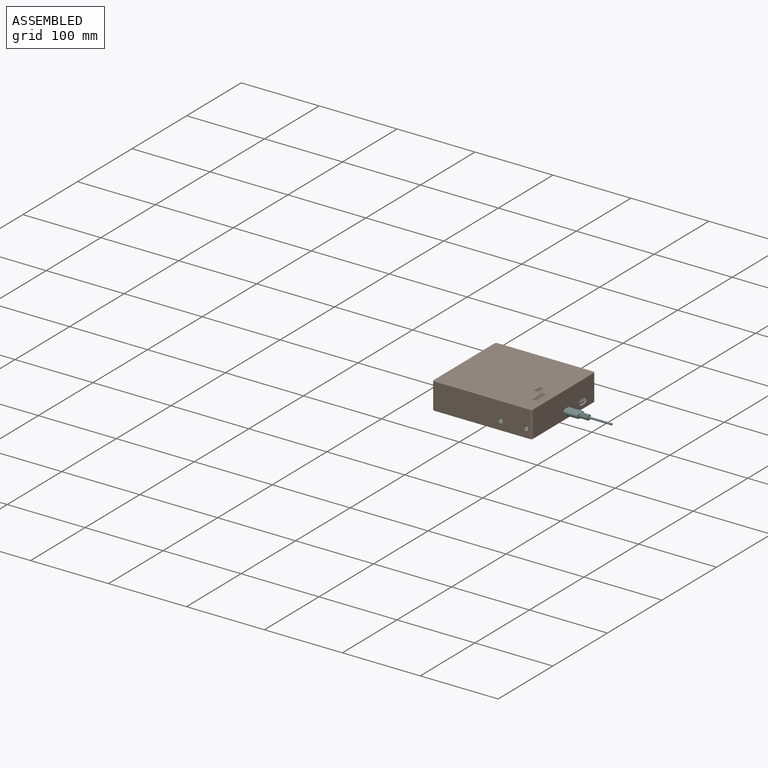
[diagram: assembled view]
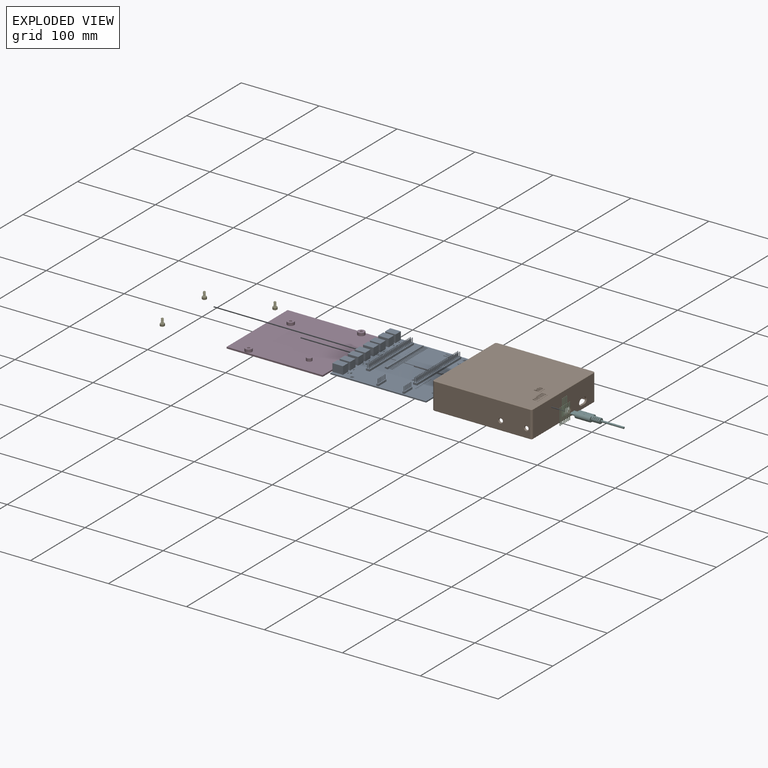
[diagram: exploded view]
GUIDED TOUR — FREECAD ASSEMBLY "ADATFaceCase"

This assembly has 6 components, labeled P0..P5 below (a component is one placed body or linked part; the same part can appear more than once), held together by 0 modeled joints plus 9 derived contact edges. A joint is a constraint between two components; its type names the relative motion it leaves free:
  CONTACT — a derived adjacency edge — the two components touch in the source model (clearance under 2% of the assembly's diagonal); it is measured from the geometry, not a modeled constraint.
Axis/direction vectors are unit vectors and 'through' points are millimeter coordinates, both in the assembly's world frame.

MATES
  1. CONTACT "contact_0_1": P0 <-> P1, contact direction (1.000, 0.000, 0.000) through (-38.56, -53.04, -4.40) mm (derived from contact, not a modeled constraint)
  2. CONTACT "contact_0_3": P0 <-> P3, contact direction (0.000, 0.000, -1.000) through (-37.58, 27.60, -5.99) mm (derived from contact, not a modeled constraint)
  3. CONTACT "contact_0_4": P0 <-> P4, contact direction (-1.000, 0.000, 0.000) through (35.49, 49.47, -4.39) mm (derived from contact, not a modeled constraint)
  4. CONTACT "contact_0_5": P0 <-> P5, contact direction (0.000, 0.000, 1.000) through (55.04, 9.71, -4.04) mm (derived from contact, not a modeled constraint)
  5. CONTACT "contact_1_2": P1 <-> P2, contact direction (1.000, 0.000, 0.000) through (55.66, -29.80, 23.04) mm (derived from contact, not a modeled constraint)
  6. CONTACT "contact_1_3": P1 <-> P3, contact direction (-1.000, 0.000, 0.000) through (62.08, 56.38, -11.65) mm (derived from contact, not a modeled constraint)
  7. CONTACT "contact_1_4": P1 <-> P4, contact direction (-1.000, 0.000, 0.000) through (-40.73, 28.87, -4.42) mm (derived from contact, not a modeled constraint)
  8. CONTACT "contact_1_5": P1 <-> P5, contact direction (1.000, 0.000, 0.000) through (61.71, 9.77, -6.25) mm (derived from contact, not a modeled constraint)
  9. CONTACT "contact_3_4": P3 <-> P4, contact direction (-0.030, 0.576, 0.817) through (35.34, 49.75, -6.90) mm (derived from contact, not a modeled constraint)

ASSEMBLY ORDER
  1. P0 — the base component [order verified]
  2. P3 [order verified]
  3. P4 [order verified]
  4. P1 [order verified]
  5. P2 [order verified]
  6. P5 [order verified]
(P3, P4, P5 verified with a relaxed clearance tolerance: the source model stores slight part interference there.)
Order-tag legend:
  [order verified] — this step's position reverses a verified removal order: the component was checked to insert without passing through the ones already placed.

Of the 6 components, 3 carry a construction recipe — the FreeCAD feature program (sketches with constraints, then the solid features that consume them) that regenerates the part from scratch, quoted from this document or from the linked companion document it references; the rest are supplied as boundary geometry only. The tour below walks the components in assembly order: each is shown spotlighted twice — in the assembled view, then in the exploded view, where a leader line traces a displaced component back to its assembled socket (components that stay in place when exploded have no leader line; saturated green if recipe-attached, orange if geometry-only; every other component desaturated gray) — followed by its recipe or geometry summary and the mates that hold it.
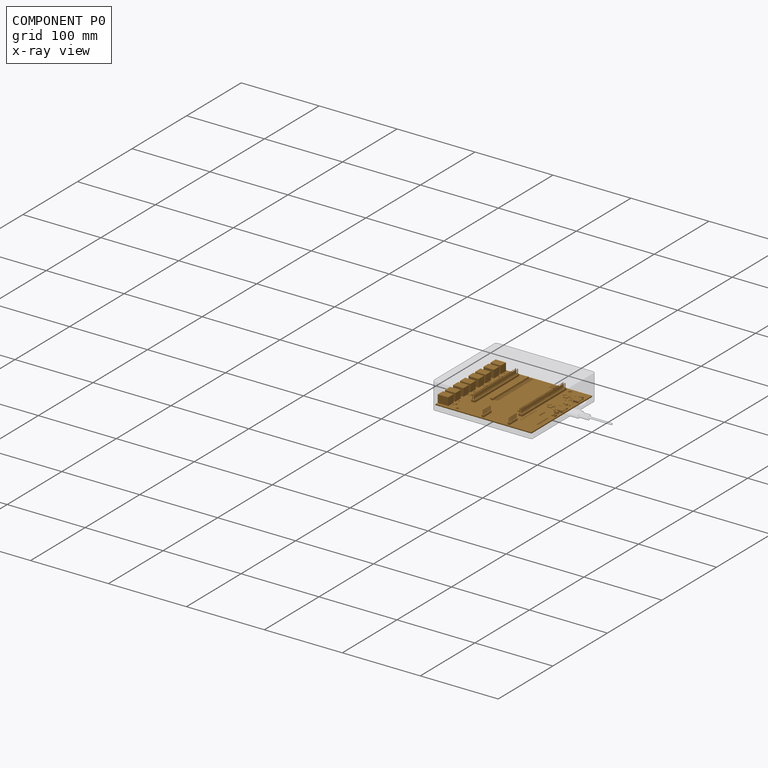
[diagram: component P0 — x-ray view]
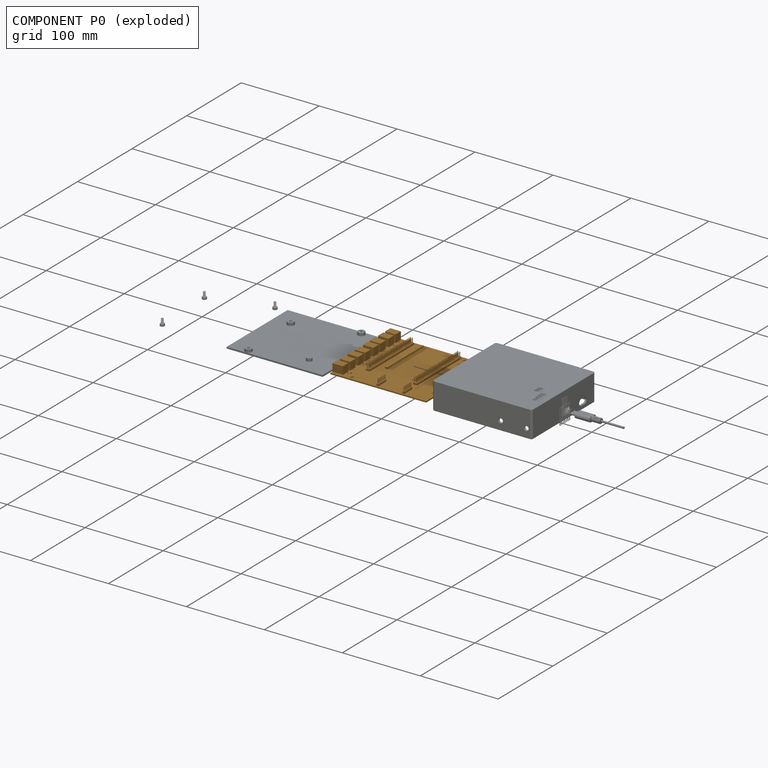
[diagram: component P0 — exploded]
COMPONENT P0 — geometry summary ("adatface_baseboard"; no construction recipe available for this part):
  bounding box: 123.0 x 111.6 x 13.8 mm
  tessellated surface: 78,732 triangles
  volume: 35729 mm^3 (19% of its bounding box)
Held by: resting contact with P1 (derived edge); resting contact with P3 (derived edge); resting contact with P4 (derived edge); resting contact with P5 (derived edge).
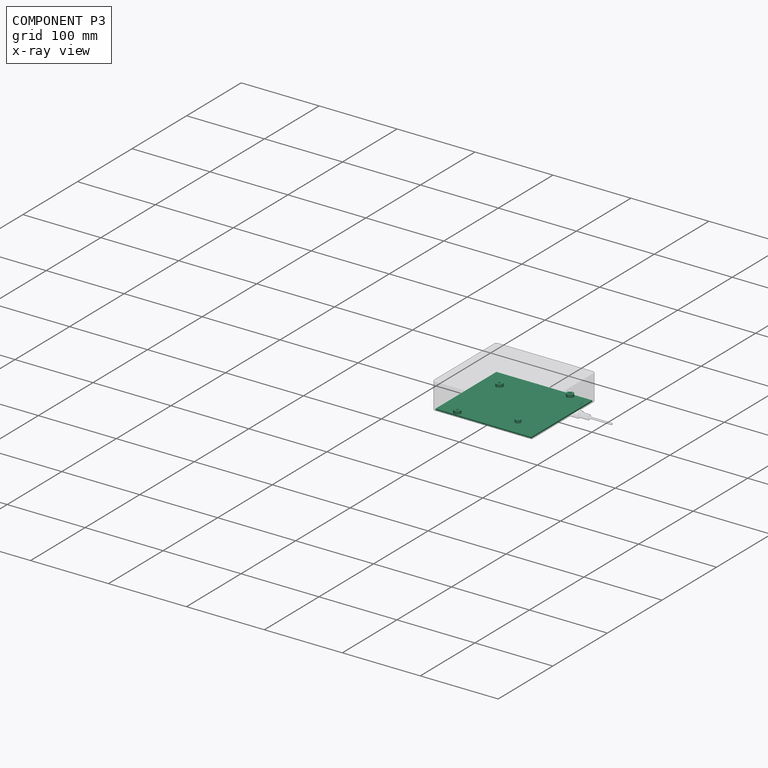
[diagram: component P3 — x-ray view]
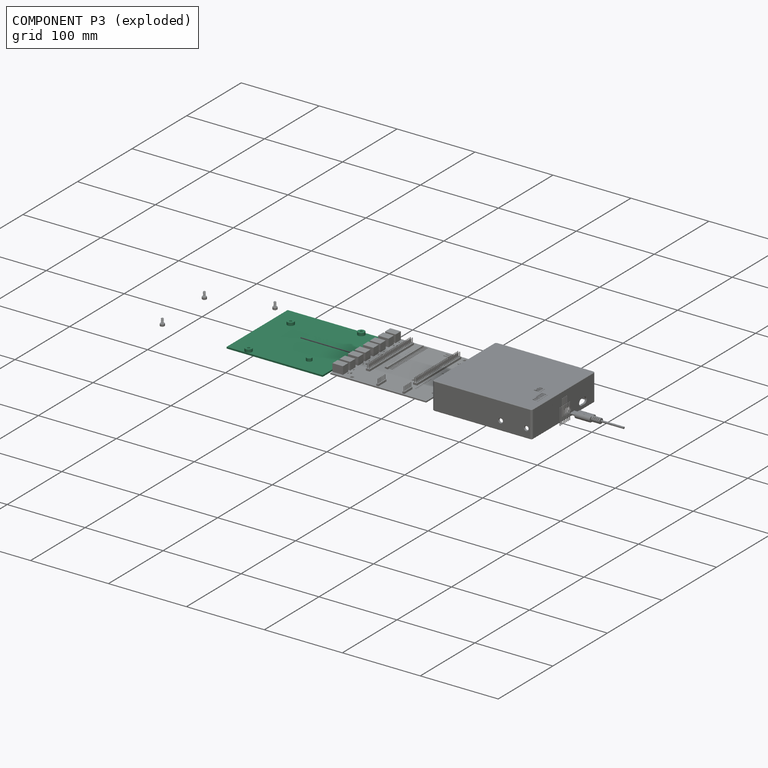
[diagram: component P3 — exploded]
COMPONENT P3 — recipe-attached ("CaseBottom", modeled in this document).
Held by: resting contact with P0 (derived edge); resting contact with P1 (derived edge); resting contact with P4 (derived edge).
Construction recipe (the document's own serialized feature program — sketch geometry with constraints, then the solid features built on it; lengths are millimeters unless a unit is written):

FEATURE [Sketcher::SketchObject] Sketch015  label="CaseBottomSketch"
  AttachmentOffset = pos=(0,0,-7.2) rot=(0,0,1;0rad)
  FullyConstrained = true
  MapMode = 5
  Placement = pos=(0,0,-7.2) rot=(0,0,1;0rad)
  Support = -> [XY_Plane020]
  expr: .AttachmentOffset.Base.z = <<Parameters>>.case_bottom_base
  expr: Constraints[9] = <<Parameters>>.board_length + <<Parameters>>.wall_clearance / 2
  expr: Constraints[8] = <<Parameters>>.board_width + <<Parameters>>.wall_clearance / 2
  sketch-geometry (4):
    g0: LineSegment StartX=-61.55 StartY=55.85 StartZ=0 EndX=61.55 EndY=55.85 EndZ=0
    g1: LineSegment StartX=61.55 StartY=55.85 StartZ=0 EndX=61.55 EndY=-55.85 EndZ=0
    g2: LineSegment StartX=61.55 StartY=-55.85 StartZ=0 EndX=-61.55 EndY=-55.85 EndZ=0
    g3: LineSegment StartX=-61.55 StartY=-55.85 StartZ=0 EndX=-61.55 EndY=55.85 EndZ=0
  constraints (11):
    c: Coincident(g0,g1)
    c: Coincident(g1,g2)
    c: Coincident(g2,g3)
    c: Coincident(g3,g0)
    c: Horizontal(g0)
    c: Horizontal(g2)
    c: Vertical(g1)
    c: Vertical(g3)
    c: DistanceX(g0,g0) = 123.1
    c: DistanceY(g1,g1) = 111.7
    c: Symmetric(g2,g0,g-1)
FEATURE [PartDesign::Pad] Pad003  label="CaseBottomPad"
  Direction = (1,1,1)
  Length = 2
  Length2 = 100
  Profile = -> Sketch015
  Type = 0
  expr: Length = <<Parameters>>.wall_thickness
FEATURE [Sketcher::SketchObject] Sketch016  label="BottomMountPadSketch"
  AttachmentOffset = pos=(0,0,-7.2) rot=(0,0,1;0rad)
  FullyConstrained = true
  MapMode = 5
  Placement = pos=(0,0,-7.2) rot=(0,0,1;0rad)
  Support = -> [XY_Plane021]
  expr: Constraints[4] = <<Parameters>>.mounting_screw_hole_diameter + <<Parameters>>.wall_thickness * 1.4
  expr: Constraints[0] = <<Parameters>>.mounting_hole_diameter
  expr: .AttachmentOffset.Base.z = <<Parameters>>.case_bottom_base
  sketch-geometry (2):
    g0: Circle CenterX=-36.7087 CenterY=-51.1516 CenterZ=0 NormalX=0 NormalY=0 NormalZ=1 AngleXU=0 Radius=1.5
    g1: Circle CenterX=-36.7087 CenterY=-51.1516 CenterZ=0 NormalX=0 NormalY=0 NormalZ=1 AngleXU=0 Radius=4.4
  constraints (5):
    c: Diameter(g0) = 3
    c: DistanceX(g0) = -36.7087
    c: DistanceY(g0) = -51.1516
    c: Coincident(g1,g0)
    c: Diameter(g1) = 8.8
FEATURE [PartDesign::Pad] Pad004  label="BottomMountPad"
  Direction = (1,1,1)
  Length = 5.71
  Length2 = 12
  Profile = -> Sketch016
  Type = 0
  expr: Length = <<Parameters>>.bottom_mount_height
FEATURE [Sketcher::SketchObject] Sketch017  label="BottomMountScrewHeadPocketSketch"
  AttachmentOffset = pos=(0,0,-7.4) rot=(0,0,1;0rad)
  FullyConstrained = true
  MapMode = 5
  Placement = pos=(0,0,-7.4) rot=(0,0,1;0rad)
  Support = -> [XY_Plane021]
  expr: .AttachmentOffset.Base.z = <<Parameters>>.case_bottom_base - <<Parameters>>.wall_clearance
  expr: Constraints[4] = <<Parameters>>.mounting_screw_hole_diameter + <<Parameters>>.hole_clearance * 2
  expr: Constraints[0] = <<Parameters>>.mounting_hole_diameter
  sketch-geometry (2):
    g0: Circle CenterX=-36.7186 CenterY=-51.1515 CenterZ=0 NormalX=0 NormalY=0 NormalZ=1 AngleXU=0 Radius=1.5
    g1: Circle CenterX=-36.7186 CenterY=-51.1515 CenterZ=0 NormalX=0 NormalY=0 NormalZ=1 AngleXU=0 Radius=3.1
  constraints (5):
    c: Diameter(g0) = 3
    c: DistanceX(g0) = -36.7186
    c: DistanceY(g0) = -51.1515
    c: Coincident(g1,g0)
    c: Diameter(g1) = 6.2
FEATURE [PartDesign::Pocket] Pocket008  label="BottomMountScrewHeadPocket"
  BaseFeature = -> Pad004
  Length = 5
  Length2 = 100
  Profile = -> Sketch017
  Reversed = true
  Type = 0
  expr: Length = <<Parameters>>.mount_nut_depth
FEATURE [Sketcher::SketchObject] Sketch018  label="BottomMountScrewHoleSketch"
  AttachmentOffset = pos=(0,0,-7.2) rot=(0,0,1;0rad)
  FullyConstrained = true
  MapMode = 5
  Placement = pos=(0,0,-7.2) rot=(0,0,1;0rad)
  Support = -> [XY_Plane021]
  expr: Constraints[0] = <<Parameters>>.mounting_hole_diameter + <<Parameters>>.hole_clearance * 2
  expr: .AttachmentOffset.Base.z = <<Parameters>>.case_bottom_base
  sketch-geometry (1):
    g0: Circle CenterX=-36.7006 CenterY=-51.1502 CenterZ=0 NormalX=0 NormalY=0 NormalZ=1 AngleXU=0 Radius=1.6
  constraints (3):
    c: Diameter(g0) = 3.2
    c: DistanceX(g0) = -36.7006
    c: DistanceY(g0) = -51.1502
FEATURE [PartDesign::Pocket] Pocket009  label="BottomMountScrewHolePocket"
  BaseFeature = -> Pocket008
  Length = 7.2
  Length2 = 100
  Profile = -> Sketch018
  Reversed = true
  Type = 0
  expr: Length = -<<Parameters>>.case_bottom_base
FEATURE [Sketcher::SketchObject] Sketch019  label="BottomSupportSketch"
  AttachmentOffset = pos=(0,0,-7.2) rot=(0,0,1;0rad)
  FullyConstrained = true
  MapMode = 5
  Placement = pos=(0,0,-7.2) rot=(0,0,1;0rad)
  Support = -> [XY_Plane022]
  expr: .AttachmentOffset.Base.z = <<Parameters>>.case_bottom_base
  sketch-geometry (1):
    g0: Circle CenterX=28.774 CenterY=-33.6451 CenterZ=0 NormalX=0 NormalY=0 NormalZ=1 AngleXU=0 Radius=3.5
  constraints (3):
    c: Diameter(g0) = 7
    c: DistanceX(g0) = 28.774
    c: DistanceY(g0) = -33.6451
FEATURE [PartDesign::Pad] Pad005  label="BottomSupportPad"
  Direction = (1,1,1)
  Length = 5.71
  Length2 = 100
  Profile = -> Sketch019
  Type = 0
  expr: Length = <<Parameters>>.bottom_mount_height
FEATURE [PartDesign::Body] Body007  label="BottomSupport"
  Group = -> [Sketch019,Pad005]
  Origin = -> Origin022
  Tip = -> Pad005
FEATURE [PartDesign::Chamfer] Chamfer004  label="OuterChamfer"
  Angle = 45
  Base = -> Pocket009 [Edge4]
  BaseFeature = -> Pocket009
  ChamferType = 0
  FlipDirection = false
  Size = 0.5
  Size2 = 1
  SupportTransform = false
FEATURE [PartDesign::Body] Body006  label="BottomMountBody"
  Group = -> [Sketch016,Pad004,Sketch017,Pocket008,Sketch018,Pocket009,Chamfer004]
  Origin = -> Origin021
  Tip = -> Chamfer004
FEATURE [Sketcher::SketchObject] Sketch020  label="BottomMountPadSketch001"
  AttachmentOffset = pos=(0,0,-7.2) rot=(0,0,1;0rad)
  FullyConstrained = true
  MapMode = 5
  Placement = pos=(0,0,-7.2) rot=(0,0,1;0rad)
  Support = -> [XY_Plane020]
  expr: .AttachmentOffset.Base.z = <<Parameters>>.case_bottom_base
  expr: Constraints[0] = <<Parameters>>.mounting_hole_diameter
  expr: Constraints[4] = <<Parameters>>.mounting_screw_hole_diameter + <<Parameters>>.wall_thickness * 1.4
  sketch-geometry (2):
    g0: Circle CenterX=-36.7087 CenterY=-51.1516 CenterZ=0 NormalX=0 NormalY=0 NormalZ=1 AngleXU=0 Radius=1.5
    g1: Circle CenterX=-36.7087 CenterY=-51.1516 CenterZ=0 NormalX=0 NormalY=0 NormalZ=1 AngleXU=0 Radius=4.4
  constraints (5):
    c: Diameter(g0) = 3
    c: DistanceX(g0) = -36.7087
    c: DistanceY(g0) = -51.1516
    c: Coincident(g1,g0)
    c: Diameter(g1) = 8.8
FEATURE [PartDesign::Pocket] Pocket010  label="BottomMountPocket"
  BaseFeature = -> Pad003
  Length = 2.2
  Length2 = 100
  Profile = -> Sketch020
  Reversed = true
  Type = 0
  expr: Length = <<Parameters>>.wall_thickness + <<Parameters>>.wall_clearance
FEATURE [Sketcher::SketchObject] Sketch021  label="BottomMountPadSketch002"
  AttachmentOffset = pos=(-2,79.9,-7.2) rot=(0,0,1;0rad)
  FullyConstrained = true
  MapMode = 5
  Placement = pos=(-2,79.9,-7.2) rot=(0,0,1;0rad)
  Support = -> [XY_Plane020]
  expr: Constraints[4] = <<Parameters>>.mounting_screw_hole_diameter + <<Parameters>>.wall_thickness * 1.4
  expr: Constraints[0] = <<Parameters>>.mounting_hole_diameter
  expr: .AttachmentOffset.Base.z = <<Parameters>>.case_bottom_base
  sketch-geometry (2):
    g0: Circle CenterX=-36.7087 CenterY=-51.1516 CenterZ=0 NormalX=0 NormalY=0 NormalZ=1 AngleXU=0 Radius=1.5
    g1: Circle CenterX=-36.7087 CenterY=-51.1516 CenterZ=0 NormalX=0 NormalY=0 NormalZ=1 AngleXU=0 Radius=4.4
  constraints (5):
    c: Diameter(g0) = 3
    c: DistanceX(g0) = -36.7087
    c: DistanceY(g0) = -51.1516
    c: Coincident(g1,g0)
    c: Diameter(g1) = 8.8
FEATURE [PartDesign::Pocket] Pocket011  label="BottomMountPocket001"
  BaseFeature = -> Pocket010
  Length = 5.71
  Length2 = 100
  Profile = -> Sketch021
  Reversed = true
  Type = 0
  expr: Length = <<Parameters>>.bottom_mount_height
FEATURE [Sketcher::SketchObject] Sketch022  label="BottomMountPadSketch003"
  AttachmentOffset = pos=(73.48,101.5,-7.2) rot=(0,0,1;0rad)
  FullyConstrained = true
  MapMode = 5
  Placement = pos=(73.48,101.5,-7.2) rot=(0,0,1;0rad)
  Support = -> [XY_Plane020]
  expr: .AttachmentOffset.Base.z = <<Parameters>>.case_bottom_base
  expr: Constraints[0] = <<Parameters>>.mounting_hole_diameter
  expr: Constraints[4] = <<Parameters>>.mounting_screw_hole_diameter + <<Parameters>>.wall_thickness * 1.4
  sketch-geometry (2):
    g0: Circle CenterX=-36.7087 CenterY=-51.1516 CenterZ=0 NormalX=0 NormalY=0 NormalZ=1 AngleXU=0 Radius=1.5
    g1: Circle CenterX=-36.7087 CenterY=-51.1516 CenterZ=0 NormalX=0 NormalY=0 NormalZ=1 AngleXU=0 Radius=4.4
  constraints (5):
    c: Diameter(g0) = 3
    c: DistanceX(g0) = -36.7087
    c: DistanceY(g0) = -51.1516
    c: Coincident(g1,g0)
    c: Diameter(g1) = 8.8
FEATURE [PartDesign::Pocket] Pocket012  label="BottomMountPocket002"
  BaseFeature = -> Pocket011
  Length = 5.71
  Length2 = 100
  Profile = -> Sketch022
  Reversed = true
  Type = 0
  expr: Length = <<Parameters>>.bottom_mount_height
FEATURE [PartDesign::Body] Body005  label="CaseBottomBody"
  Group = -> [Sketch015,Pad003,Sketch020,Pocket010,Sketch021,Pocket011,Sketch022,Pocket012]
  Origin = -> Origin020
  Tip = -> Pocket012
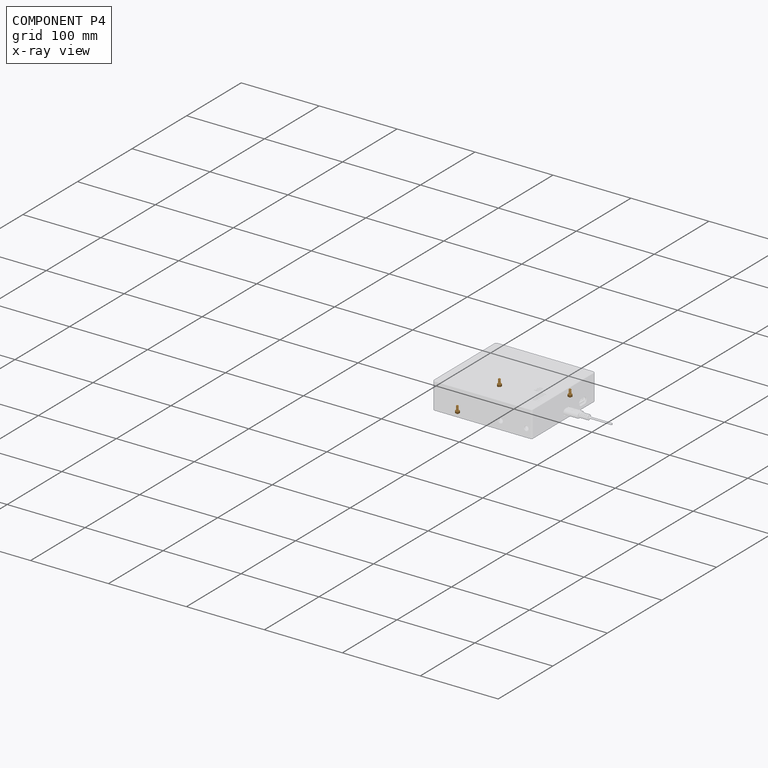
[diagram: component P4 — x-ray view]
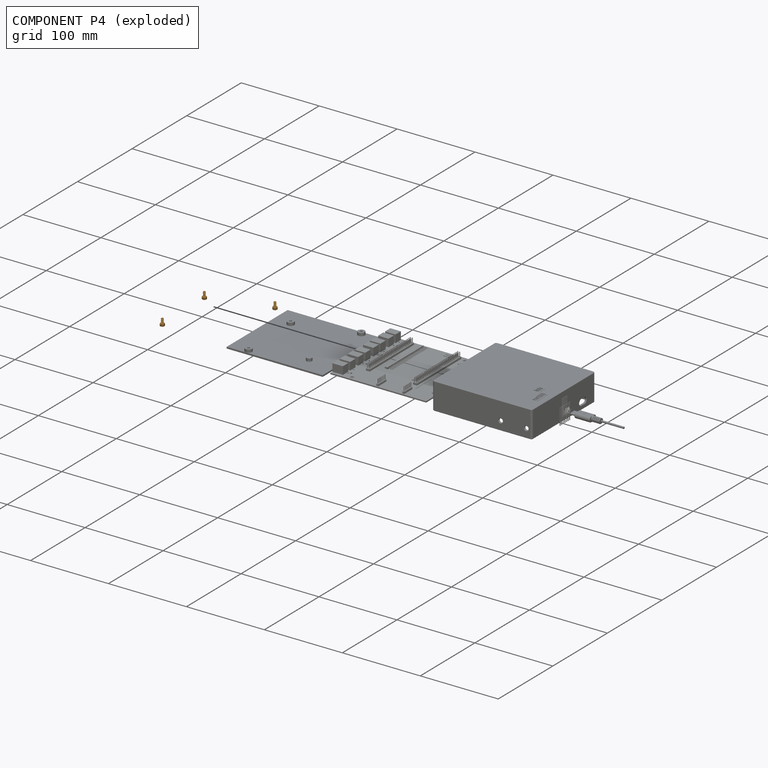
[diagram: component P4 — exploded]
COMPONENT P4 — geometry summary ("Screws"; no construction recipe available for this part):
  bounding box: 107.0 x 81.0 x 9.0 mm
  tessellated surface: 31,800 triangles
  volume: 280 mm^3 (0% of its bounding box)
Held by: resting contact with P0 (derived edge); resting contact with P1 (derived edge); resting contact with P3 (derived edge).
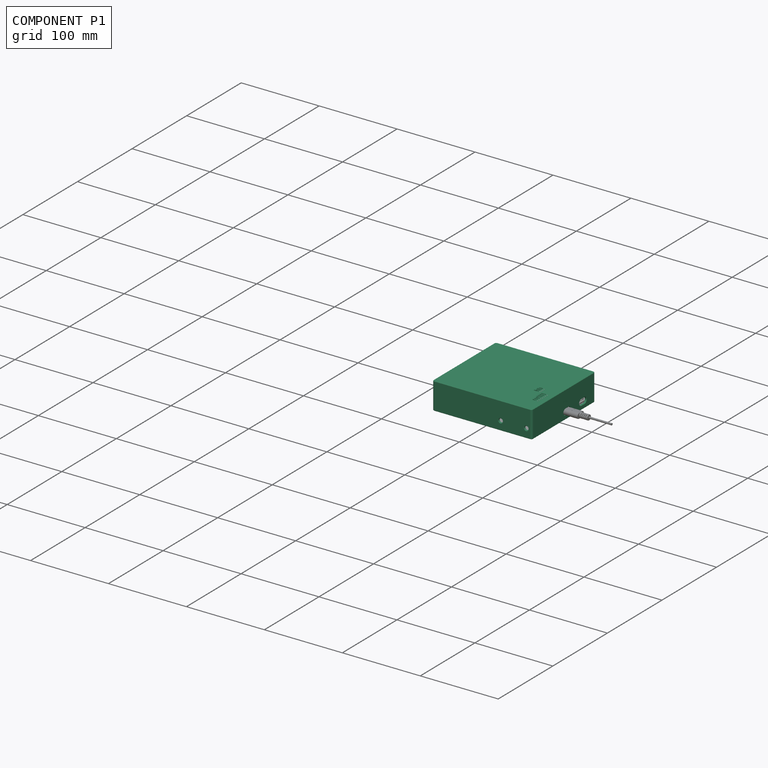
[diagram: component P1 — assembled]
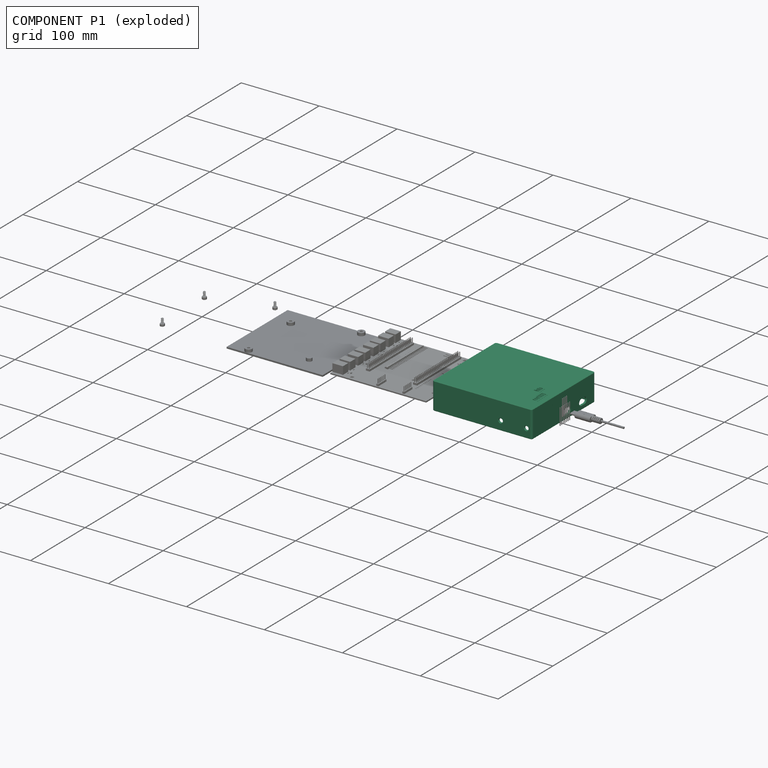
[diagram: component P1 — exploded]
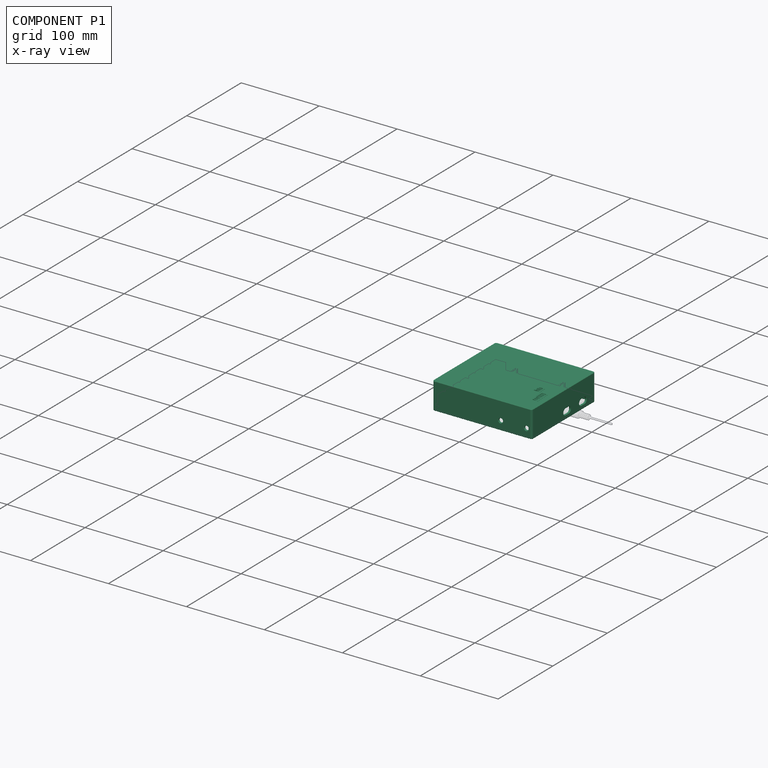
[diagram: component P1 — x-ray view]
COMPONENT P1 — recipe-attached ("CaseTop", modeled in this document).
Held by: resting contact with P0 (derived edge); resting contact with P2 (derived edge); resting contact with P3 (derived edge); resting contact with P4 (derived edge); resting contact with P5 (derived edge).
Construction recipe (the document's own serialized feature program — sketch geometry with constraints, then the solid features built on it; lengths are millimeters unless a unit is written):

FEATURE [Sketcher::SketchObject] Sketch  label="CaseBaseSketch"
  AttachmentOffset = pos=(0,0,-7.2) rot=(0,0,1;0rad)
  FullyConstrained = true
  MapMode = 5
  Placement = pos=(0,0,-7.2) rot=(0,0,1;0rad)
  Support = -> [XY_Plane005]
  expr: Constraints[6] = <<Parameters>>.board_width
  expr: Constraints[7] = Spreadsheet.board_length
  expr: .AttachmentOffset.Base.z = -<<Parameters>>.bottom_offset
  expr: Constraints[28] = <<Parameters>>.wall_thickness + <<Parameters>>.wall_clearance
  expr: Constraints[27] = <<Parameters>>.wall_clearance + <<Parameters>>.wall_thickness
  expr: Constraints[20] = <<Parameters>>.wall_thickness + <<Parameters>>.wall_clearance
  expr: Constraints[29] = <<Parameters>>.corner_radius
  expr: Constraints[26] = <<Parameters>>.corner_radius
  sketch-geometry (12):
    g0: LineSegment StartX=-61.5 StartY=-55.8 StartZ=0 EndX=61.5 EndY=-55.8 EndZ=0
    g1: LineSegment StartX=61.5 StartY=-55.8 StartZ=0 EndX=61.5 EndY=55.8 EndZ=0
    g2: LineSegment StartX=61.5 StartY=55.8 StartZ=0 EndX=-61.5 EndY=55.8 EndZ=0
    g3: LineSegment StartX=-61.5 StartY=55.8 StartZ=0 EndX=-61.5 EndY=-55.8 EndZ=0
    g4: LineSegment StartX=-61.5 StartY=-58 StartZ=0 EndX=61.2 EndY=-58 EndZ=0
    g5: LineSegment StartX=63.7 StartY=-55.5 StartZ=0 EndX=63.7 EndY=55.5 EndZ=0
    g6: LineSegment StartX=61.2 StartY=58 StartZ=0 EndX=-61.5 EndY=58 EndZ=0
    g7: LineSegment StartX=-64 StartY=55.5 StartZ=0 EndX=-64 EndY=-55.5 EndZ=0
    g8: ArcOfCircle CenterX=61.2 CenterY=55.5 CenterZ=0 NormalX=0 NormalY=0 NormalZ=1 AngleXU=0 Radius=2.5 StartAngle=-1.8e-15 EndAngle=1.5708
    g9: ArcOfCircle CenterX=-61.5 CenterY=55.5 CenterZ=0 NormalX=0 NormalY=0 NormalZ=1 AngleXU=0 Radius=2.5 StartAngle=1.5708 EndAngle=3.14159
    g10: ArcOfCircle CenterX=-61.5 CenterY=-55.5 CenterZ=0 NormalX=0 NormalY=0 NormalZ=1 AngleXU=0 Radius=2.5 StartAngle=3.14159 EndAngle=4.71239
    g11: ArcOfCircle CenterX=61.2 CenterY=-55.5 CenterZ=0 NormalX=0 NormalY=0 NormalZ=1 AngleXU=0 Radius=2.5 StartAngle=4.71239 EndAngle=6.28319
  constraints (30):
    c: Coincident(g0,g1)
    c: Coincident(g1,g2)
    c: Coincident(g2,g3)
    c: Coincident(g3,g0)
    c: Horizontal(g0)
    c: Vertical(g1)
    c: DistanceX(g2,g1) = 123
    c: DistanceY(g0,g2) = 111.6
    c: Symmetric(g2,g1,g-2)
    c: Symmetric(g0,g2,g-1)
    c: Horizontal(g4)
    c: Horizontal(g6)
    c: Tangent(g6,g8) = -1.5708
    c: Tangent(g5,g8) = -1.5708
    c: Tangent(g6,g9) = -1.5708
    c: Tangent(g7,g9) = -1.5708
    c: Tangent(g4,g10) = -1.5708
    c: Tangent(g7,g10) = -1.5708
    c: Tangent(g4,g11) = -1.5708
    c: Tangent(g5,g11) = -1.5708
    c: DistanceX(g1,g5) = 2.2
    c: Parallel(g5,g7)
    c: DistanceX(g7,g2) = 2.5
    c: Equal(g8,g9)
    c: Equal(g11,g10)
    c: Parallel(g1,g5)
    c: Radius(g11) = 2.5
    c: DistanceY(g4,g0) = 2.2
    c: DistanceY(g2,g6) = 2.2
    c: Radius(g8) = 2.5
FEATURE [PartDesign::Pad] Pad  label="CaseTopPad"
  Direction = (1,1,1)
  Length = 34.65
  Length2 = 100
  Profile = -> Sketch
  Type = 0
  expr: Length = Spreadsheet.case_height
FEATURE [Sketcher::SketchObject] Sketch001  label="CaseInsidePocketSketch"
  AttachmentOffset = pos=(0,0,-7.2) rot=(0,0,1;0rad)
  FullyConstrained = true
  MapMode = 5
  Placement = pos=(0,0,-7.2) rot=(0,0,1;0rad)
  Support = -> [XY_Plane005]
  expr: .AttachmentOffset.Base.z = -<<Parameters>>.bottom_offset
  expr: Constraints[10] = <<Parameters>>.board_length + <<Parameters>>.wall_clearance
  expr: Constraints[9] = <<Parameters>>.board_width + <<Parameters>>.wall_clearance
  sketch-geometry (4):
    g0: LineSegment StartX=-61.6 StartY=-55.9 StartZ=0 EndX=61.6 EndY=-55.9 EndZ=0
    g1: LineSegment StartX=61.6 StartY=-55.9 StartZ=0 EndX=61.6 EndY=55.9 EndZ=0
    g2: LineSegment StartX=61.6 StartY=55.9 StartZ=0 EndX=-61.6 EndY=55.9 EndZ=0
    g3: LineSegment StartX=-61.6 StartY=55.9 StartZ=0 EndX=-61.6 EndY=-55.9 EndZ=0
  constraints (11):
    c: Coincident(g0,g1)
    c: Coincident(g1,g2)
    c: Coincident(g2,g3)
    c: Coincident(g3,g0)
    c: Horizontal(g0)
    c: Horizontal(g2)
    c: Vertical(g1)
    c: Vertical(g3)
    c: Symmetric(g0,g1,g-1)
    c: DistanceX(g2,g2) = 123.2
    c: DistanceY(g1,g1) = 111.8
FEATURE [PartDesign::Pocket] Pocket  label="CaseTopPocket"
  BaseFeature = -> Pad
  Length = 32.65
  Length2 = 100
  Profile = -> Sketch001
  Reversed = true
  Type = 0
  expr: Length = Spreadsheet.case_height - <<Parameters>>.wall_thickness
FEATURE [PartDesign::Plane] DatumPlane  label="ADATTerminalPlane"
  Length = 131.6
  MapMode = 5
  Placement = pos=(-64,0,0) rot=(0.57735,-0.57735,-0.57735;2.0944rad)
  ResizeMode = 0
  Support = -> [Pocket]
  Width = 68.0503
FEATURE [Sketcher::SketchObject] Sketch002  label="ADATHoleLeftSketch"
  FullyConstrained = true
  MapMode = 5
  Placement = pos=(-64,0,0) rot=(0.57735,-0.57735,-0.57735;2.0944rad)
  Support = -> [DatumPlane]
  expr: Constraints[9] = 10mm + <<Parameters>>.hole_clearance * 2
  sketch-geometry (4):
    g0: LineSegment StartX=-54.1803 StartY=0 StartZ=0 EndX=-43.9803 EndY=0 EndZ=0
    g1: LineSegment StartX=-43.9803 StartY=0 StartZ=0 EndX=-43.9803 EndY=10.2 EndZ=0
    g2: LineSegment StartX=-43.9803 StartY=10.2 StartZ=0 EndX=-54.1803 EndY=10.2 EndZ=0
    g3: LineSegment StartX=-54.1803 StartY=10.2 StartZ=0 EndX=-54.1803 EndY=0 EndZ=0
  constraints (12):
    c: Coincident(g0,g1)
    c: Coincident(g1,g2)
    c: Coincident(g2,g3)
    c: Coincident(g3,g0)
    c: Horizontal(g0)
    c: Horizontal(g2)
    c: Vertical(g1)
    c: Vertical(g3)
    c: PointOnObject(g0,g-1)
    c: DistanceX(g2,g2) = 10.2
    c: DistanceX(g1) = -43.9803
    c: Equal(g2,g3)
FEATURE [PartDesign::Pocket] Pocket001  label="ADATHoleLeftPocket"
  BaseFeature = -> Pocket
  Length = 2.4
  Length2 = 100
  Profile = -> Sketch002
  Type = 0
  expr: Length = <<Parameters>>.wall_thickness + <<Parameters>>.wall_clearance * 2
FEATURE [PartDesign::LinearPattern] LinearPattern  label="ADATHolesLeft"
  BaseFeature = -> Pocket001
  Direction = -> Sketch002 [H_Axis]
  Length = 83.2
  Occurrences = 4
  Originals = -> [Pocket001]
FEATURE [Sketcher::SketchObject] Sketch003  label="ADATHoleRightSketch"
  FullyConstrained = true
  MapMode = 5
  Placement = pos=(-64,0,0) rot=(0.57735,-0.57735,-0.57735;2.0944rad)
  Support = -> [DatumPlane]
  expr: Constraints[9] = 10mm + <<Parameters>>.hole_clearance * 2
  sketch-geometry (16):
    g0: LineSegment StartX=-41.37 StartY=0 StartZ=0 EndX=-31.17 EndY=0 EndZ=0
    g1: LineSegment StartX=-31.17 StartY=0 StartZ=0 EndX=-31.17 EndY=10.2 EndZ=0
    g2: LineSegment StartX=-31.17 StartY=10.2 StartZ=0 EndX=-41.37 EndY=10.2 EndZ=0
    g3: LineSegment StartX=-41.37 StartY=10.2 StartZ=0 EndX=-41.37 EndY=0 EndZ=0
    g4: LineSegment StartX=-13.6859 StartY=0 StartZ=0 EndX=-3.4859 EndY=0 EndZ=0
    g5: LineSegment StartX=-3.4859 StartY=0 StartZ=0 EndX=-3.4859 EndY=10.2 EndZ=0
    g6: LineSegment StartX=-3.4859 StartY=10.2 StartZ=0 EndX=-13.6859 EndY=10.2 EndZ=0
    g7: LineSegment StartX=-13.6859 StartY=10.2 StartZ=0 EndX=-13.6859 EndY=0 EndZ=0
    g8: LineSegment StartX=14.2565 StartY=0 StartZ=0 EndX=24.4565 EndY=0 EndZ=0
    g9: LineSegment StartX=24.4565 StartY=0 StartZ=0 EndX=24.4565 EndY=10.2 EndZ=0
    g10: LineSegment StartX=24.4565 StartY=10.2 StartZ=0 EndX=14.2565 EndY=10.2 EndZ=0
    g11: LineSegment StartX=14.2565 StartY=10.2 StartZ=0 EndX=14.2565 EndY=0 EndZ=0
    g12: LineSegment StartX=42.2106 StartY=0 StartZ=0 EndX=52.4106 EndY=0 EndZ=0
    g13: LineSegment StartX=52.4106 StartY=0 StartZ=0 EndX=52.4106 EndY=10.2 EndZ=0
    g14: LineSegment StartX=52.4106 StartY=10.2 StartZ=0 EndX=42.2106 EndY=10.2 EndZ=0
    g15: LineSegment StartX=42.2106 StartY=10.2 StartZ=0 EndX=42.2106 EndY=0 EndZ=0
  constraints (48):
    c: Coincident(g0,g1)
    c: Coincident(g1,g2)
    c: Coincident(g2,g3)
    c: Coincident(g3,g0)
    c: Horizontal(g0)
    c: Horizontal(g2)
    c: Vertical(g1)
    c: Vertical(g3)
    c: PointOnObject(g0,g-1)
    c: DistanceX(g2,g2) = 10.2
    c: Equal(g3,g2)
    c: Coincident(g4,g5)
    c: Coincident(g5,g6)
    c: Coincident(g6,g7)
    c: Coincident(g7,g4)
    c: Horizontal(g4)
    c: Horizontal(g6)
    c: Vertical(g5)
    c: Vertical(g7)
    c: PointOnObject(g4,g-1)
    c: Equal(g7,g3)
    c: Equal(g6,g2)
    c: DistanceX(g4) = -3.4859
    c: Coincident(g8,g9)
    c: Coincident(g9,g10)
    c: Coincident(g10,g11)
    c: Coincident(g11,g8)
    c: Horizontal(g8)
    c: Horizontal(g10)
    c: Vertical(g9)
    c: Vertical(g11)
    c: PointOnObject(g8,g-1)
    c: Equal(g5,g9)
    c: Equal(g6,g10)
    c: DistanceX(g9) = 24.4565
    c: DistanceX(g1) = -31.17
    c: Coincident(g12,g13)
    c: Coincident(g13,g14)
    c: Coincident(g14,g15)
    c: Coincident(g15,g12)
    c: Horizontal(g12)
    c: Horizontal(g14)
    c: Vertical(g13)
    c: Vertical(g15)
    c: PointOnObject(g12,g-1)
    c: Equal(g9,g13)
    c: Equal(g10,g14)
    c: DistanceX(g13) = 52.4106
FEATURE [PartDesign::Pocket] Pocket002  label="ADATHoleRightPocket"
  BaseFeature = -> LinearPattern
  Length = 2.4
  Length2 = 100
  Profile = -> Sketch003
  Type = 0
  expr: Length = <<Parameters>>.wall_thickness + <<Parameters>>.wall_clearance * 2
FEATURE [PartDesign::Plane] DatumPlane001  label="USBHolesPlane"
  Length = 131.6
  MapMode = 5
  Placement = pos=(63.7,0,0) rot=(0.57735,0.57735,0.57735;2.0944rad)
  ResizeMode = 0
  Support = -> [Pocket]
  Width = 68.0503
FEATURE [Sketcher::SketchObject] Sketch004  label="USBHolesSketch"
  FullyConstrained = true
  MapMode = 5
  Placement = pos=(63.7,0,0) rot=(0.57735,0.57735,0.57735;2.0944rad)
  Support = -> [DatumPlane001]
  expr: Constraints[36] = <<Parameters>>.usb_clearance
  expr: Constraints[35] = <<Parameters>>.usb_clearance
  expr: Constraints[27] = <<Parameters>>.usb_clearance
  expr: Constraints[26] = <<Parameters>>.usb_clearance
  sketch-geometry (14):
    g0: LineSegment StartX=3.30881 StartY=3.20306 StartZ=0 EndX=9.83267 EndY=3.20306 EndZ=0
    g1: ArcOfCircle CenterX=3.30881 CenterY=2.00589 CenterZ=0 NormalX=0 NormalY=0 NormalZ=1 AngleXU=0 Radius=1.19716 StartAngle=1.5708 EndAngle=3.14159
    g2: LineSegment StartX=2.11165 StartY=2.00589 StartZ=0 EndX=2.11165 EndY=1.2174 EndZ=0
    g3: ArcOfCircle CenterX=3.30881 CenterY=1.2174 CenterZ=0 NormalX=0 NormalY=0 NormalZ=1 AngleXU=0 Radius=1.19716 StartAngle=3.14159 EndAngle=4.71239
    g4: LineSegment StartX=3.30881 StartY=0.020237 StartZ=0 EndX=9.83267 EndY=0.020237 EndZ=0
    g5: ArcOfCircle CenterX=9.83267 CenterY=1.2174 CenterZ=0 NormalX=0 NormalY=0 NormalZ=1 AngleXU=0 Radius=1.19716 StartAngle=4.71239 EndAngle=6.28319
    g6: LineSegment StartX=11.0298 StartY=1.2174 StartZ=0 EndX=11.0298 EndY=2.00589 EndZ=0
    g7: ArcOfCircle CenterX=9.83267 CenterY=2.00589 CenterZ=0 NormalX=0 NormalY=0 NormalZ=1 AngleXU=0 Radius=1.19716 StartAngle=0 EndAngle=1.5708
    g8: ArcOfCircle CenterX=3.70306 CenterY=1.61165 CenterZ=0 NormalX=0 NormalY=0 NormalZ=1 AngleXU=0 Radius=3.59141 StartAngle=1.5708 EndAngle=4.71239
    g9: ArcOfCircle CenterX=9.43842 CenterY=1.61165 CenterZ=0 NormalX=0 NormalY=0 NormalZ=1 AngleXU=0 Radius=3.59141 StartAngle=4.71239 EndAngle=7.85398
    g10: LineSegment StartX=3.70306 StartY=-1.97976 StartZ=0 EndX=9.43842 EndY=-1.97976 EndZ=0
    g11: LineSegment StartX=3.70306 StartY=5.20306 StartZ=0 EndX=9.43842 EndY=5.20306 EndZ=0
    g12: LineSegment StartX=2.11165 StartY=1.61165 StartZ=0 EndX=0.111649 EndY=1.61165 EndZ=0
    g13: LineSegment StartX=11.0298 StartY=1.61165 StartZ=0 EndX=13.0298 EndY=1.61165 EndZ=0
  constraints (40):
    c: Vertical(g6)
    c: Horizontal(g4)
    c: Horizontal(g0)
    c: Vertical(g2)
    c: Horizontal(g6,g1)
    c: Tangent(g2,g3) = -1.5708
    c: Tangent(g1,g2) = -1.5708
    c: Tangent(g0,g1) = 1.5708
    c: Tangent(g0,g7) = 1.5708
    c: Tangent(g6,g7) = -1.5708
    c: Tangent(g5,g6) = -1.5708
    c: Tangent(g5,g4) = -1.5708
    c: Tangent(g4,g3) = -1.5708
    c: Vertical(g3,g1)
    c: Vertical(g5,g7)
    c: DistanceX(g3) = 3.30881
    c: DistanceY(g3) = 1.2174
    c: DistanceY(g1) = 2.00589
    c: DistanceX(g7) = 9.83267
    c: DistanceX(g5,g5) = 1.19716
    c: Tangent(g8,g11) = 1.5708
    c: Tangent(g8,g10) = -1.5708
    c: Tangent(g10,g9) = -1.5708
    c: Tangent(g11,g9) = 1.5708
    c: Horizontal(g10)
    c: Equal(g8,g9)
    c: DistanceY(g0,g9) = 2
    c: DistanceY(g9,g4) = 2
    c: PointOnObject(g12,g2)
    c: PointOnObject(g12,g8)
    c: Horizontal(g12)
    c: Perpendicular(g8,g12)
    c: PointOnObject(g13,g6)
    c: PointOnObject(g13,g9)
    c: Horizontal(g13)
    c: DistanceX(g13,g13) = 2
    c: DistanceX(g12,g12) = 2
    c: Horizontal(g13,g12)
    c: DistanceX(g12,g13) = 12.9182
    c: DistanceY(g8,g8) = 7.18282
FEATURE [PartDesign::Pocket] Pocket003  label="USBHolePocket"
  BaseFeature = -> Pocket002
  Length = 2.2
  Length2 = 100
  Profile = -> Sketch004
  Type = 0
  expr: Length = <<Parameters>>.wall_thickness + <<Parameters>>.wall_clearance
FEATURE [PartDesign::LinearPattern] LinearPattern001  label="USBHoles"
  BaseFeature = -> Pocket003
  Direction = -> Sketch004 [H_Axis]
  Length = 29
  Occurrences = 2
  Originals = -> [Pocket003]
  expr: Length = <<Parameters>>.usb_ports_distance
FEATURE [PartDesign::Plane] DatumPlane002  label="HeadphoneJacksPlane"
  Length = 144.068
  MapMode = 5
  Placement = pos=(0,-58,0) rot=(1,0,0;1.5708rad)
  ResizeMode = 0
  Width = 68.8181
FEATURE [Sketcher::SketchObject] Sketch006  label="RightHeadPhoneJackSketch"
  FullyConstrained = true
  MapMode = 5
  Placement = pos=(0,-58,0) rot=(1,0,0;1.5708rad)
  Support = -> [DatumPlane002]
  expr: Constraints[0] = <<Parameters>>.headphone_jack_outer_diameter + <<Parameters>>.hole_clearance * 2
  expr: Constraints[6] = <<Parameters>>.headphone_jack_outer_diameter
  expr: Constraints[9] = <<Parameters>>.headphone_jack_right_offset
  expr: Constraints[12] = Spreadsheet.pcb_thickness
  sketch-geometry (6):
    g0: Circle CenterX=56.5001 CenterY=4.15 CenterZ=0 NormalX=0 NormalY=0 NormalZ=1 AngleXU=0 Radius=2.6
    g1: GeomPoint X=61.5001 Y=0 Z=0
    g2: GeomPoint X=59.1001 Y=4.15 Z=0
    g3: Circle CenterX=56.5001 CenterY=4.15 CenterZ=0 NormalX=0 NormalY=0 NormalZ=1 AngleXU=0 Radius=2.5
    g4: GeomPoint X=59.0001 Y=4.15 Z=0
    g5: GeomPoint X=56.5001 Y=1.65 Z=0
  constraints (13):
    c: Diameter(g0) = 5.2
    c: PointOnObject(g1,g-1)
    c: DistanceX(g1) = 61.5001
    c: PointOnObject(g2,g0)
    c: Horizontal(g0,g2)
    c: Coincident(g3,g0)
    c: Diameter(g3) = 5
    c: PointOnObject(g4,g3)
    c: Horizontal(g4,g2)
    c: DistanceX(g4,g1) = 2.5
    c: PointOnObject(g5,g3)
    c: Vertical(g5,g0)
    c: DistanceY(g-1,g5) = 1.65
FEATURE [PartDesign::Pocket] Pocket004  label="RightHeadphoneJackHole"
  BaseFeature = -> LinearPattern001
  Length = 2.4
  Length2 = 100
  Profile = -> Sketch006
  Type = 0
  expr: Length = <<Parameters>>.wall_thickness + <<Parameters>>.wall_clearance * 2
FEATURE [PartDesign::LinearPattern] LinearPattern002  label="HeadphoneJackHoles"
  BaseFeature = -> Pocket004
  Direction = -> Sketch006 [H_Axis]
  Length = 33
  Occurrences = 2
  Originals = -> [Pocket004]
  Reversed = true
  expr: Length = <<Parameters>>.headphone_jacks_distance
FEATURE [Sketcher::SketchObject] Sketch008  label="MountingHoleSupportSketch"
  FullyConstrained = true
  MapMode = 5
  Support = -> [XY_Plane005]
  sketch-geometry (15):
    g0: Circle CenterX=-36.7074 CenterY=-51.1515 CenterZ=0 NormalX=0 NormalY=0 NormalZ=1 AngleXU=0 Radius=3.5
    g1: Circle CenterX=-39.1074 CenterY=-51.1515 CenterZ=0 NormalX=0 NormalY=0 NormalZ=1 AngleXU=0 Radius=0.25
    g2: Circle CenterX=-36.7074 CenterY=-51.1515 CenterZ=0 NormalX=0 NormalY=0 NormalZ=1 AngleXU=0 Radius=1.5
    g3: Circle CenterX=18.2434 CenterY=-20.1961 CenterZ=0 NormalX=0 NormalY=0 NormalZ=1 AngleXU=0 Radius=0.25
    g4: Circle CenterX=20.6434 CenterY=-20.1961 CenterZ=0 NormalX=0 NormalY=0 NormalZ=1 AngleXU=0 Radius=1.5
    g5: Circle CenterX=20.6434 CenterY=-20.1961 CenterZ=0 NormalX=0 NormalY=0 NormalZ=1 AngleXU=0 Radius=3.5
    g6: Circle CenterX=20.6434 CenterY=-20.1961 CenterZ=0 NormalX=0 NormalY=0 NormalZ=1 AngleXU=0 Radius=1.6
    g7: Circle CenterX=36.7748 CenterY=50.3513 CenterZ=0 NormalX=0 NormalY=0 NormalZ=1 AngleXU=0 Radius=3.5
    g8: Circle CenterX=34.3748 CenterY=50.3513 CenterZ=0 NormalX=0 NormalY=0 NormalZ=1 AngleXU=0 Radius=0.25
    g9: Circle CenterX=36.7748 CenterY=50.3513 CenterZ=0 NormalX=0 NormalY=0 NormalZ=1 AngleXU=0 Radius=1.6
    g10: Circle CenterX=36.7748 CenterY=50.3513 CenterZ=0 NormalX=0 NormalY=0 NormalZ=1 AngleXU=0 Radius=1.5
    g11: Circle CenterX=-41.0992 CenterY=28.7496 CenterZ=0 NormalX=0 NormalY=0 NormalZ=1 AngleXU=0 Radius=0.25
    g12: Circle CenterX=-38.6992 CenterY=28.7496 CenterZ=0 NormalX=0 NormalY=0 NormalZ=1 AngleXU=0 Radius=1.6
    g13: Circle CenterX=-38.6992 CenterY=28.7496 CenterZ=0 NormalX=0 NormalY=0 NormalZ=1 AngleXU=0 Radius=1.5
    g14: Circle CenterX=-38.6992 CenterY=28.7496 CenterZ=0 NormalX=0 NormalY=0 NormalZ=1 AngleXU=0 Radius=3.5
  constraints (38):
    c: Diameter(g0) = 7
    c: Diameter(g1) = 0.5
    c: DistanceY(g1) = -51.1515
    c: Horizontal(g1,g0)
    c: Coincident(g2,g0)
    c: Diameter(g2) = 3
    c: Equal(g0,g5) = 7
    c: Equal(g1,g3) = 0.5
    c: Horizontal(g3,g5)
    c: Coincident(g4,g5)
    c: Equal(g2,g4) = 3
    c: DistanceX(g3) = 18.2434
    c: DistanceY(g3) = -20.1961
    c: Coincident(g6,g5)
    c: Diameter(g6) = 3.2
    c: DistanceX(g3,g5) = 2.4
    c: DistanceX(g0) = -36.7074
    c: DistanceX(g1,g0) = 2.4
    c: Horizontal(g8,g7)
    c: Coincident(g10,g7)
    c: Coincident(g9,g7)
    c: Equal(g6,g9) = 3.2
    c: DistanceX(g8,g7) = 2.4
    c: DistanceX(g7) = 36.7748
    c: DistanceY(g7) = 50.3513
    c: Equal(g8,g3)
    c: Equal(g10,g4)
    c: Equal(g5,g7)
    c: Horizontal(g11,g14)
    c: Coincident(g13,g14)
    c: Coincident(g12,g14)
    c: DistanceX(g11,g14) = 2.4
    c: DistanceX(g11) = -41.0992
    c: DistanceY(g11) = 28.7496
    c: Equal(g14,g7)
    c: Equal(g12,g9)
    c: Equal(g13,g10)
    c: Equal(g8,g11)
FEATURE [PartDesign::Chamfer] Chamfer  label="HeadphoneJackChamfer"
  Angle = 45
  Base = -> LinearPattern002 [Edge5,Edge6]
  BaseFeature = -> LinearPattern002
  ChamferType = 0
  FlipDirection = false
  Size = 0.5
  Size2 = 1
  SupportTransform = false
  expr: Size = <<Parameters>>.default_chamfer
FEATURE [PartDesign::Chamfer] Chamfer001  label="CaseAndADATChamfer"
  Angle = 45
  Base = -> Chamfer [Face9]
  BaseFeature = -> Chamfer
  ChamferType = 0
  FlipDirection = false
  Size = 0.5
  Size2 = 1
  SupportTransform = false
  expr: Size = <<Parameters>>.default_chamfer
FEATURE [Sketcher::SketchObject] Sketch009  label="MountMaster"
  FullyConstrained = true
  MapMode = 5
  Support = -> [XY_Plane014]
  sketch-geometry (3):
    g0: Circle CenterX=-36.7074 CenterY=-51.1515 CenterZ=0 NormalX=0 NormalY=0 NormalZ=1 AngleXU=0 Radius=3.5
    g1: Circle CenterX=-39.1074 CenterY=-51.1515 CenterZ=0 NormalX=0 NormalY=0 NormalZ=1 AngleXU=0 Radius=0.25
    g2: Circle CenterX=-36.7074 CenterY=-51.1515 CenterZ=0 NormalX=0 NormalY=0 NormalZ=1 AngleXU=0 Radius=1.5
  constraints (8):
    c: Diameter(g0) = 7
    c: Diameter(g1) = 0.5
    c: DistanceY(g1) = -51.1515
    c: Horizontal(g1,g0)
    c: Coincident(g2,g0)
    c: Diameter(g2) = 3
    c: DistanceX(g0) = -36.7074
    c: DistanceX(g1,g0) = 2.4
FEATURE [Sketcher::SketchObject] Sketch010  label="MountBaseSketch"
  ExternalGeometry = -> [Sketch009]
  FullyConstrained = true
  MapMode = 5
  Support = -> [XY_Plane014]
  expr: Constraints[1] = <<Parameters>>.mount_nut_outer_diameter + <<Parameters>>.wall_thickness
  expr: .AttachmentOffset.Base.z = 0
  sketch-geometry (1):
    g0: Circle CenterX=-36.7074 CenterY=-51.1515 CenterZ=0 NormalX=0 NormalY=0 NormalZ=1 AngleXU=0 Radius=3.65
  constraints (2):
    c: Coincident(g0,g-3)
    c: Diameter(g0) = 7.3
FEATURE [PartDesign::Pad] Pad001  label="MountBase"
  Direction = (1,1,1)
  Length = 26
  Length2 = 100
  Profile = -> Sketch010
  Type = 0
  expr: Length = Spreadsheet.case_height - <<Parameters>>.wall_thickness - <<Parameters>>.bottom_space - <<Parameters>>.pcb_thickness
FEATURE [Sketcher::SketchObject] Sketch011  label="MountPocketSketch"
  ExternalGeometry = -> [Sketch009]
  FullyConstrained = true
  MapMode = 5
  Support = -> [XY_Plane014]
  expr: Constraints[1] = <<Parameters>>.mount_nut_outer_diameter
  sketch-geometry (1):
    g0: Circle CenterX=-36.7074 CenterY=-51.1515 CenterZ=0 NormalX=0 NormalY=0 NormalZ=1 AngleXU=0 Radius=2.65
  constraints (2):
    c: Coincident(g0,g-3)
    c: Diameter(g0) = 5.3
FEATURE [PartDesign::Pocket] Pocket005  label="MountPocket"
  BaseFeature = -> Pad001
  Length = 5
  Length2 = 100
  Profile = -> Sketch011
  Reversed = true
  Type = 0
  expr: Length = <<Parameters>>.mount_nut_depth
FEATURE [PartDesign::Body] Body001  label="BottomLeftMount"
  Group = -> [Sketch010,Sketch009,Pad001,Sketch011,Pocket005]
  Origin = -> Origin014
  Tip = -> Pocket005
FEATURE [Sketcher::SketchObject] Sketch012  label="BottomRightSupportSketch"
  FullyConstrained = true
  MapMode = 5
  Support = -> [XY_Plane015]
  sketch-geometry (4):
    g0: Circle CenterX=26.3821 CenterY=-33.6537 CenterZ=0 NormalX=0 NormalY=0 NormalZ=1 AngleXU=0 Radius=0.25
    g1: Circle CenterX=28.7821 CenterY=-33.6537 CenterZ=0 NormalX=0 NormalY=0 NormalZ=1 AngleXU=0 Radius=1.5
    g2: Circle CenterX=28.7821 CenterY=-33.6537 CenterZ=0 NormalX=0 NormalY=0 NormalZ=1 AngleXU=0 Radius=3.5
    g3: Circle CenterX=28.7821 CenterY=-33.6537 CenterZ=0 NormalX=0 NormalY=0 NormalZ=1 AngleXU=0 Radius=1.6
  constraints (10):
    c: Horizontal(g0,g2)
    c: Coincident(g1,g2)
    c: Coincident(g3,g2)
    c: Diameter(g3) = 3.2
    c: DistanceX(g0,g2) = 2.4
    c: DistanceX(g2) = 28.7821
    c: DistanceY(g2) = -33.6537
    c: Diameter(g2) = 7
    c: Diameter(g0) = 0.5
    c: Diameter(g1) = 3
FEATURE [PartDesign::Pad] Pad002  label="BottomRightSupportPad"
  Direction = (1,1,1)
  Length = 26
  Length2 = 100
  Profile = -> Sketch012
  Type = 0
  expr: Length = Spreadsheet.case_height - <<Parameters>>.wall_thickness - <<Parameters>>.bottom_space - <<Parameters>>.pcb_thickness
FEATURE [PartDesign::Body] Body002  label="BottomRightSupport"
  Group = -> [Sketch012,Pad002]
  Origin = -> Origin015
  Tip = -> Pad002
FEATURE [PartDesign::Chamfer] Chamfer002  label="USBChamfer"
  Angle = 45
  Base = -> Chamfer001 [Edge83,Edge87]
  BaseFeature = -> Chamfer001
  ChamferType = 0
  FlipDirection = false
  Size = 0.5
  Size2 = 1
  SupportTransform = false
  expr: Size = <<Parameters>>.default_chamfer
FEATURE [PartDesign::Plane] DatumPlane003  label="CaseTopPlane"
  Length = 152.042
  MapMode = 5
  Placement = pos=(0,0,27.45) rot=(0,0,1;0rad)
  ResizeMode = 0
  Support = -> [Chamfer002]
  Width = 140.342
FEATURE [Sketcher::SketchObject] Sketch013  label="LightpipeHoleSketch"
  FullyConstrained = true
  MapMode = 5
  Placement = pos=(0,0,27.45) rot=(0,0,1;0rad)
  Support = -> [DatumPlane003]
  expr: Constraints[0] = <<Parameters>>.lightpipe_hole_diameter
  sketch-geometry (1):
    g0: Circle CenterX=55.8525 CenterY=-36.1494 CenterZ=0 NormalX=0 NormalY=0 NormalZ=1 AngleXU=0 Radius=0.55
  constraints (3):
    c: Diameter(g0) = 1.1
    c: DistanceX(g0) = 55.8525
    c: DistanceY(g0) = -36.1494
FEATURE [PartDesign::Pocket] Pocket006  label="LightpipeHole"
  BaseFeature = -> Chamfer002
  Length = 2
  Length2 = 100
  Profile = -> Sketch013
  Type = 0
  expr: Length = <<Parameters>>.wall_thickness
FEATURE [PartDesign::LinearPattern] LinearPattern003  label="LightpipeHoles"
  BaseFeature = -> Pocket006
  Direction = -> Sketch013 [V_Axis]
  Length = 17.365
  Occurrences = 7
  Originals = -> [Pocket006]
FEATURE [Sketcher::SketchObject] Sketch014  label="DebugLEDHoleSketch"
  FullyConstrained = true
  MapMode = 5
  Placement = pos=(0,0,27.45) rot=(0,0,1;0rad)
  Support = -> [DatumPlane003]
  expr: Constraints[0] = <<Parameters>>.lightpipe_hole_diameter
  sketch-geometry (1):
    g0: Circle CenterX=44.8756 CenterY=-16.2968 CenterZ=0 NormalX=0 NormalY=0 NormalZ=1 AngleXU=0 Radius=0.55
  constraints (3):
    c: Diameter(g0) = 1.1
    c: DistanceX(g0) = 44.8756
    c: DistanceY(g0) = -16.2968
FEATURE [PartDesign::Pocket] Pocket007  label="DebugLEDHole"
  BaseFeature = -> LinearPattern003
  Length = 2
  Length2 = 100
  Profile = -> Sketch014
  Type = 0
  expr: Length = <<Parameters>>.wall_thickness
FEATURE [PartDesign::LinearPattern] LinearPattern004  label="DebugLEDHoles"
  BaseFeature = -> Pocket007
  Direction = -> Sketch014 [V_Axis]
  Length = 7.75
  Occurrences = 4
  Originals = -> [Pocket007]
FEATURE [PartDesign::Chamfer] Chamfer003  label="LightpipeHoleChamfer"
  Angle = 45
  Base = -> LinearPattern004 [Face23]
  BaseFeature = -> LinearPattern004
  ChamferType = 0
  FlipDirection = false
  Size = 0.2
  Size2 = 1
  SupportTransform = false
FEATURE [PartDesign::Body] Body  label="CaseTopBody"
  Group = -> [Sketch,Pad,Sketch001,Pocket,DatumPlane,Sketch002,Pocket001,LinearPattern,Sketch003,Pocket002,DatumPlane001,Sketch004,Pocket003,LinearPattern001,DatumPlane002,Sketch006,Pocket004,LinearPattern002,Sketch008,Chamfer,Chamfer001,Chamfer002,DatumPlane003,Sketch013,Pocket006,LinearPattern003,Sketch014,Pocket007,LinearPattern004,Chamfer003]
  Origin = -> Origin005
  Tip = -> Chamfer003
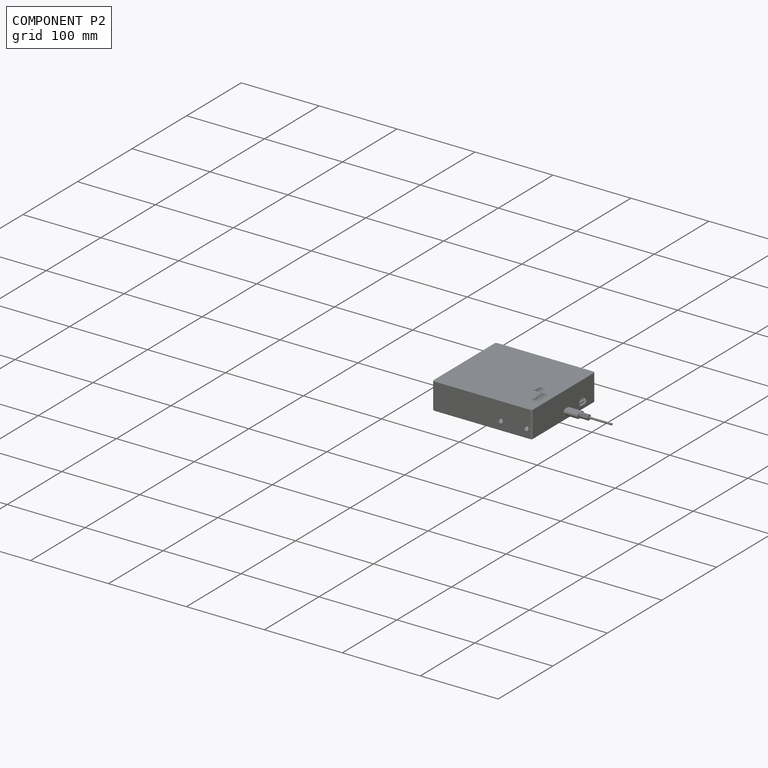
[diagram: component P2 — assembled]
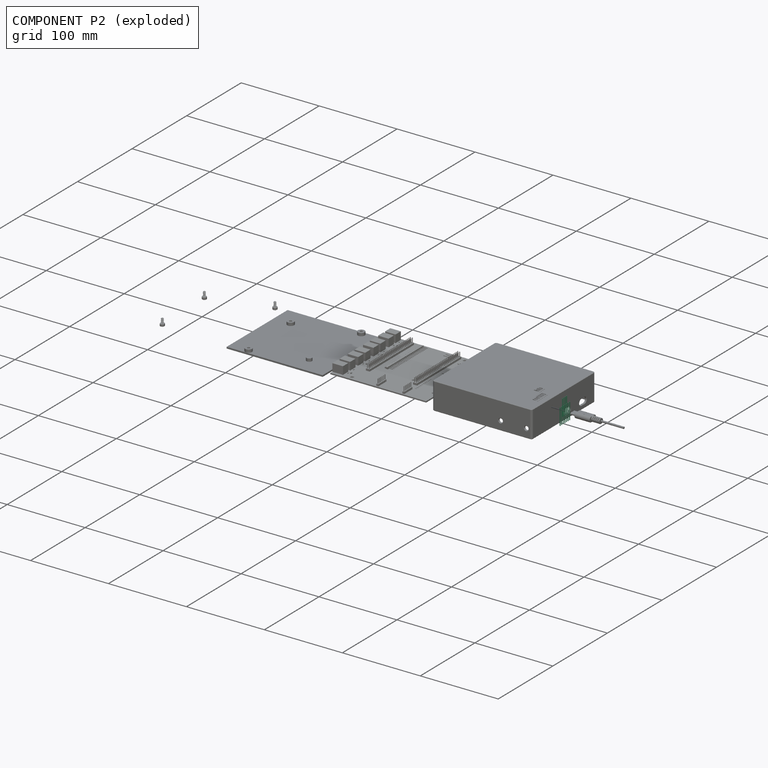
[diagram: component P2 — exploded]
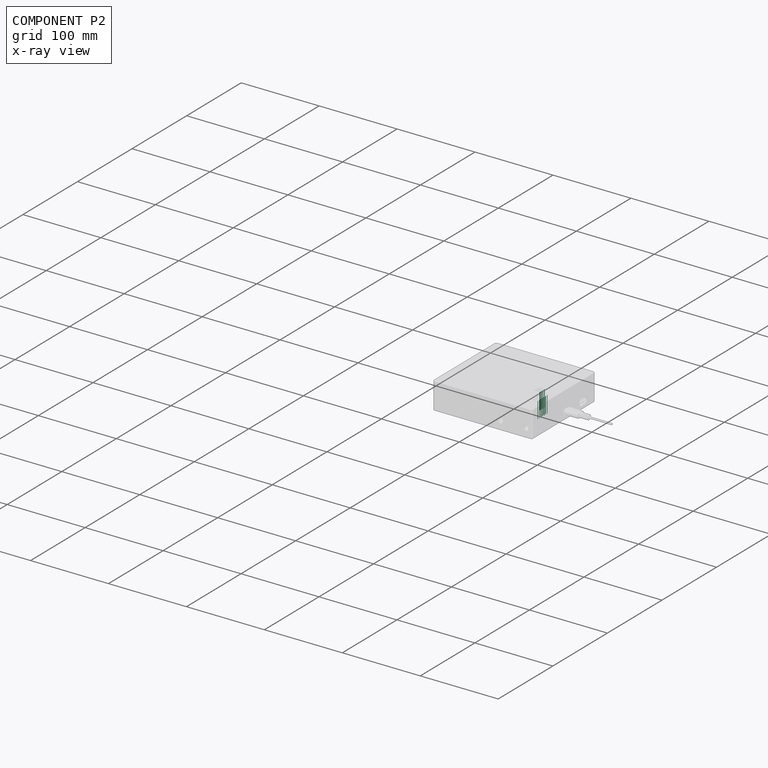
[diagram: component P2 — x-ray view]
COMPONENT P2 — recipe-attached ("LightPipes", modeled in this document).
Held by: resting contact with P1 (derived edge).
Construction recipe (the document's own serialized feature program — sketch geometry with constraints, then the solid features built on it; lengths are millimeters unless a unit is written):

FEATURE [PartDesign::AdditiveCylinder] Cylinder  label="LightpipeCylinder"
  Angle = 360
  AttacherType = Attacher::AttachEngine3D
  Height = 21.1
  Radius = 0.5
  expr: Height = <<Parameters>>.lightpipe_length
  expr: Radius = <<Parameters>>.lightpipe_inner_diameter / 2
FEATURE [PartDesign::Body] Body003  label="Lightpipe"
  Group = -> [Cylinder]
  Origin = -> Origin017
  Placement = pos=(55.85,-36.15,0) rot=(0,0,1;0rad)
  Tip = -> Cylinder
FEATURE [PartDesign::AdditiveCylinder] Cylinder001  label="DebugLightpipeCylinder"
  Angle = 360
  AttacherType = Attacher::AttachEngine3D
  Height = 21.1
  MapMode = 5
  Radius = 0.5
  expr: Radius = <<Parameters>>.lightpipe_inner_diameter / 2
  expr: Height = <<Parameters>>.lightpipe_length
FEATURE [PartDesign::Body] Body004  label="DebugLightpipe"
  Group = -> [Cylinder001]
  Origin = -> Origin018
  Placement = pos=(44.88,-16.3,0) rot=(0,0,1;0rad)
  Tip = -> Cylinder001
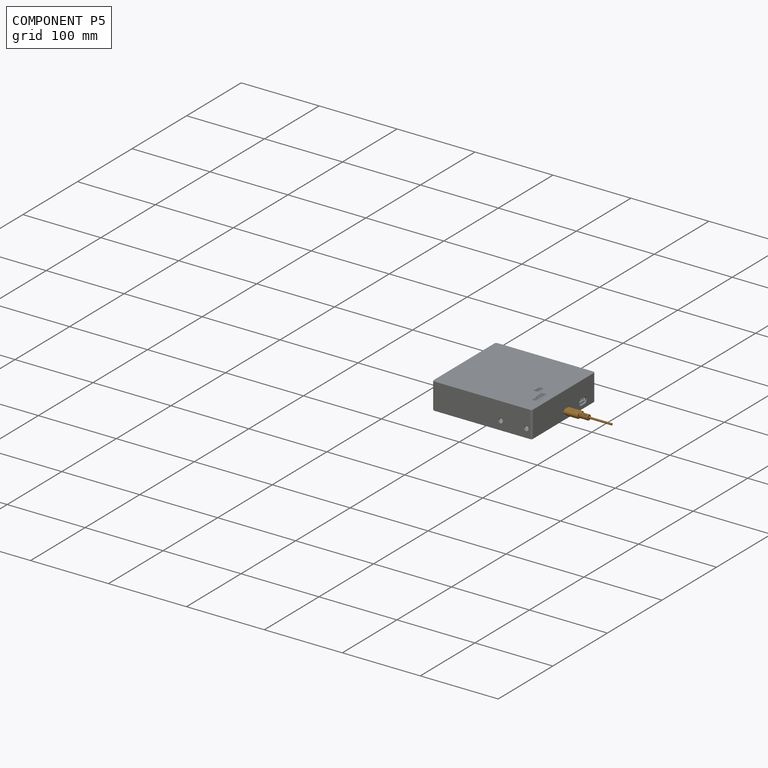
[diagram: component P5 — assembled]
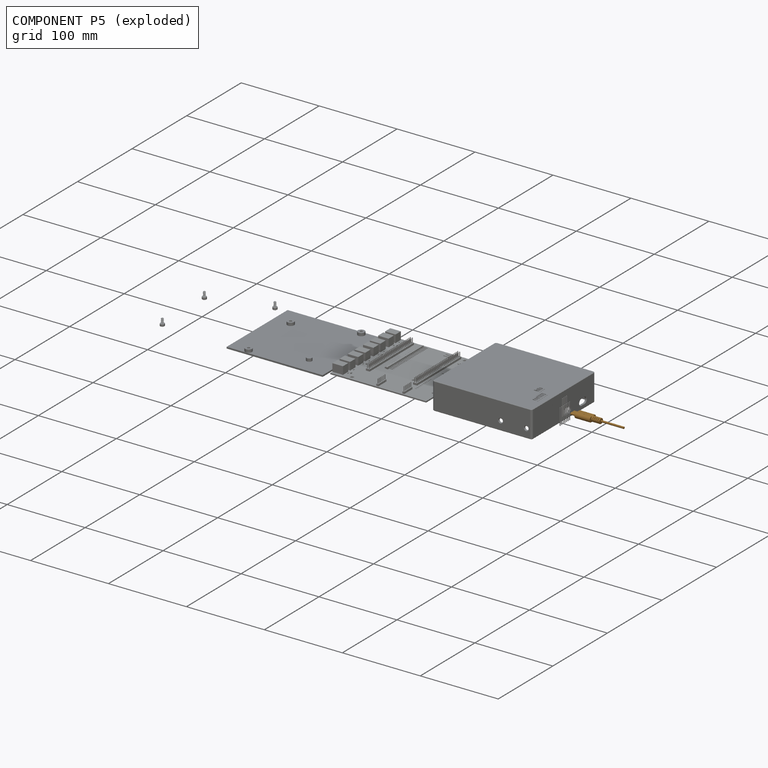
[diagram: component P5 — exploded]
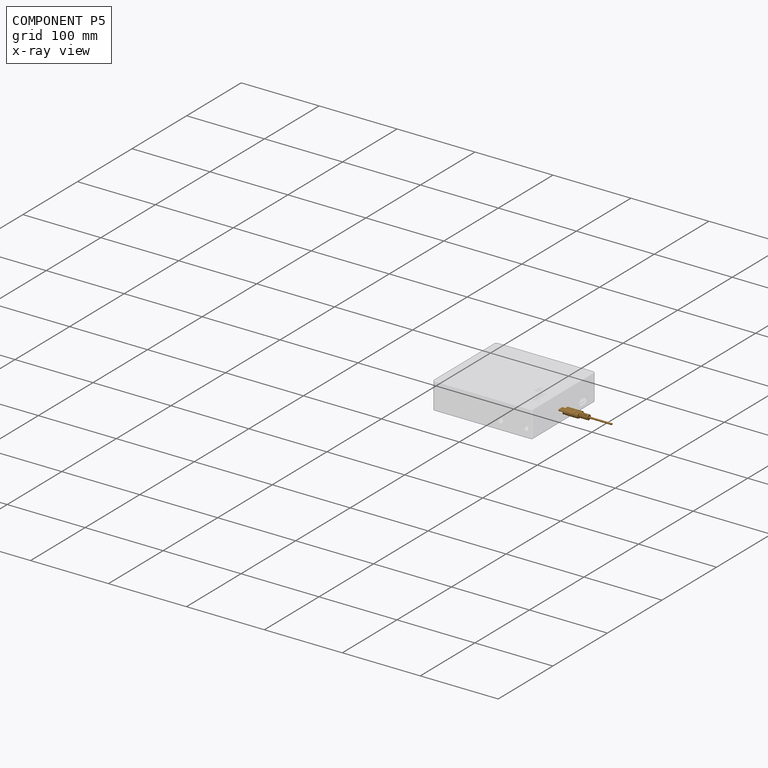
[diagram: component P5 — x-ray view]
COMPONENT P5 — geometry summary ("Raspberry Pi Official USB-C Charger plug v1"; no construction recipe available for this part):
  bounding box: 66.2 x 12.1 x 6.7 mm
  tessellated surface: 14,572 triangles
  volume: 1947 mm^3 (36% of its bounding box)
  symmetry: mirror-symmetric across its y mid-plane
Held by: resting contact with P0 (derived edge); resting contact with P1 (derived edge).
PROVENANCE & LICENSES
Assembly and component geometry: a FreeCAD (.FCStd) document from a public repository crawl; components, placements and joints were extracted with FreeCAD and each solid tessellated.
Construction recipes: the document's own serialized feature recipes (and, for linked parts, the recipes of companion documents from the same project).
License: other.
Joints: native FreeCAD joints and A2plus constraints are mapped to standard mate types; edges marked 'derived from contact' connect touching components and are measured from the geometry, not modeled.
Verification: 3 of this assembly's 6 components carry a construction recipe (3 from this document itself); the rest are geometry-only. Every component's tessellation passed the extraction mesh gates (mesh-volume checksum against the B-rep where available, bounding-box inflation <= 2%).
Renders: orthographic iso camera (az 35 / el 25); the floor grid conveys scale (grid pitch printed in each image; no ruler). In the exploded view each component is displaced by its stored offset vector: the offsets alone carry the explosion direction (mate normal/axis signs are not orientation cues and do not encode it), and separation distances are assigned per mate-chain, not proportionally to assembly-order depth.
